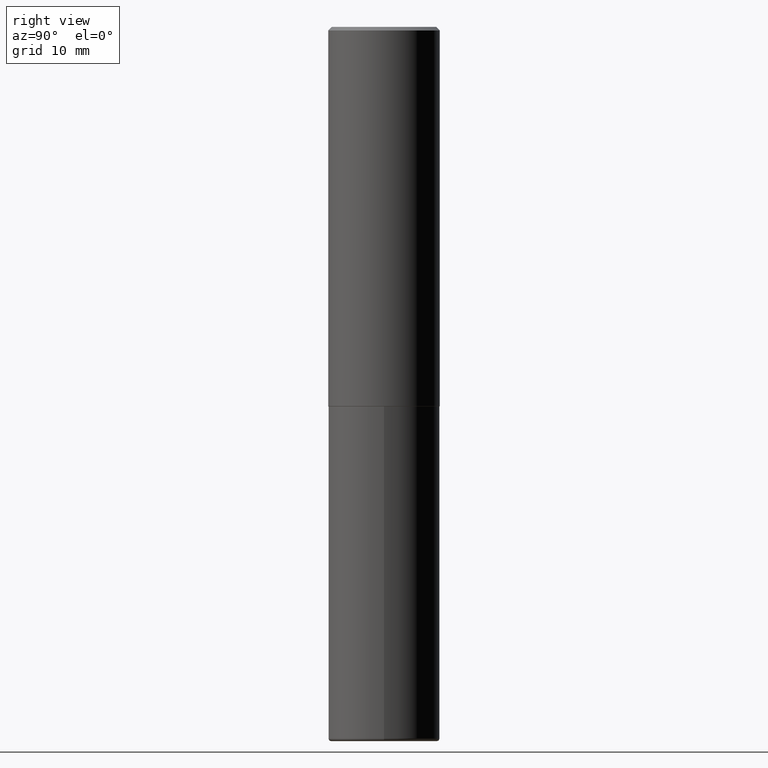
[diagram: clean part render]
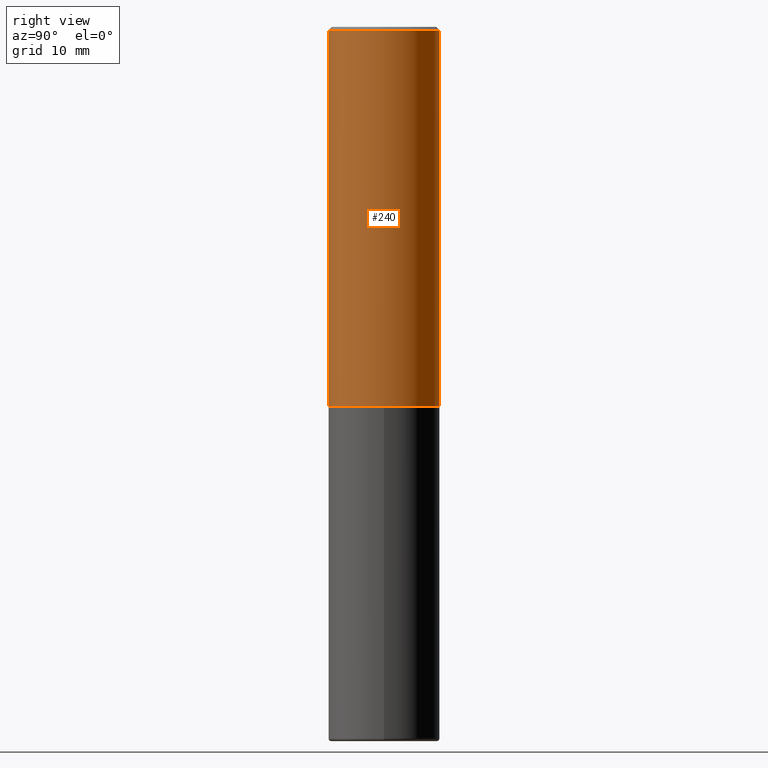
[diagram: same view with one face highlighted and labeled with its STEP entity id]
A machine part, right view. The second image highlights one B-rep face of the part: STEP entity #240.
In plain terms, the highlighted cylindrical surface (partial cylindrical patch) has radius 7.9375 mm, axis along (-0, 0, 1).
Its self-contained STEP definition (entity closure, byte-faithful):
#9 = CARTESIAN_POINT ( 'NONE',  ( 5.192866564986985411E-29, -7.417781183046251262E-15, -2.123999999999999666 ) ) ;
#13 = AXIS2_PLACEMENT_3D ( 'NONE', #9, #266, #390 ) ;
#18 = LINE ( 'NONE', #182, #309 ) ;
#60 = DIRECTION ( 'NONE',  ( -2.444852431726452614E-29, 3.492364022149836358E-15, 1.000000000000000000 ) ) ;
#71 = VERTEX_POINT ( 'NONE', #215 ) ;
#81 = EDGE_CURVE ( 'NONE', #395, #123, #385, .T. ) ;
#97 = ORIENTED_EDGE ( 'NONE', *, *, #136, .T. ) ;
#100 = CARTESIAN_POINT ( 'NONE',  ( 2.220446049250313475E-15, 0.3125000000000001665, -1.091363756921824478E-15 ) ) ;
#109 = EDGE_CURVE ( 'NONE', #221, #123, #127, .T. ) ;
#120 = VECTOR ( 'NONE', #60, 39.37007874015748143 ) ;
#123 = VERTEX_POINT ( 'NONE', #295 ) ;
#127 = CIRCLE ( 'NONE', #384, 0.3125000000000000000 ) ;
#136 = EDGE_CURVE ( 'NONE', #71, #395, #144, .T. ) ;
#144 = CIRCLE ( 'NONE', #13, 0.3125000000000002776 ) ;
#166 = DIRECTION ( 'NONE',  ( -6.982962677686265133E-15, -1.000000000000000000, 3.496765431890256920E-15 ) ) ;
#180 = CYLINDRICAL_SURFACE ( 'NONE', #275, 0.3125000000000001665 ) ;
#182 = CARTESIAN_POINT ( 'NONE',  ( -2.182175836776959136E-15, -0.3125000000000001665, 1.091363756921824478E-15 ) ) ;
#212 = CARTESIAN_POINT ( 'NONE',  ( 0.000000000000000000, 0.000000000000000000, 0.000000000000000000 ) ) ;
#215 = CARTESIAN_POINT ( 'NONE',  ( -2.182175836776908254E-15, -0.3125000000000077161, -2.123999999999998334 ) ) ;
#220 = CARTESIAN_POINT ( 'NONE',  ( 2.220446049250340297E-15, 0.3124999999999928391, -2.124000000000000554 ) ) ;
#221 = VERTEX_POINT ( 'NONE', #332 ) ;
#240 = ADVANCED_FACE ( 'NONE', ( #338 ), #180, .T. ) ;
#241 = DIRECTION ( 'NONE',  ( -6.982962677686265133E-15, -1.000000000000000000, 3.492364022149836358E-15 ) ) ;
#266 = DIRECTION ( 'NONE',  ( -2.444852431726452894E-29, 3.492364022149836358E-15, 1.000000000000000000 ) ) ;
#272 = DIRECTION ( 'NONE',  ( -2.444852431726452894E-29, 3.492364022149836358E-15, 1.000000000000000000 ) ) ;
#273 = EDGE_CURVE ( 'NONE', #71, #221, #18, .T. ) ;
#275 = AXIS2_PLACEMENT_3D ( 'NONE', #212, #272, #241 ) ;
#293 = ORIENTED_EDGE ( 'NONE', *, *, #109, .F. ) ;
#295 = CARTESIAN_POINT ( 'NONE',  ( 2.182175836776958741E-15, 0.3124999999999999445, -0.02000000000000116268 ) ) ;
#308 = DIRECTION ( 'NONE',  ( -2.444852431726452614E-29, 3.492364022149836358E-15, 1.000000000000000000 ) ) ;
#309 = VECTOR ( 'NONE', #308, 39.37007874015748143 ) ;
#322 = ORIENTED_EDGE ( 'NONE', *, *, #273, .F. ) ;
#332 = CARTESIAN_POINT ( 'NONE',  ( -2.143905624303602824E-15, -0.3125000000000000555, -0.01999999999999897693 ) ) ;
#338 = FACE_OUTER_BOUND ( 'NONE', #354, .T. ) ;
#354 = EDGE_LOOP ( 'NONE', ( #97, #387, #293, #322 ) ) ;
#357 = DIRECTION ( 'NONE',  ( -2.444852431726452894E-29, 3.492364022149836358E-15, 1.000000000000000000 ) ) ;
#361 = CARTESIAN_POINT ( 'NONE',  ( 4.889704863452922148E-31, -6.984728044299695791E-17, -0.02000000000000006981 ) ) ;
#384 = AXIS2_PLACEMENT_3D ( 'NONE', #361, #357, #166 ) ;
#385 = LINE ( 'NONE', #100, #120 ) ;
#387 = ORIENTED_EDGE ( 'NONE', *, *, #81, .T. ) ;
#390 = DIRECTION ( 'NONE',  ( -6.982962677686265922E-15, -1.000000000000000000, 3.496765431890253764E-15 ) ) ;
#395 = VERTEX_POINT ( 'NONE', #220 ) ;